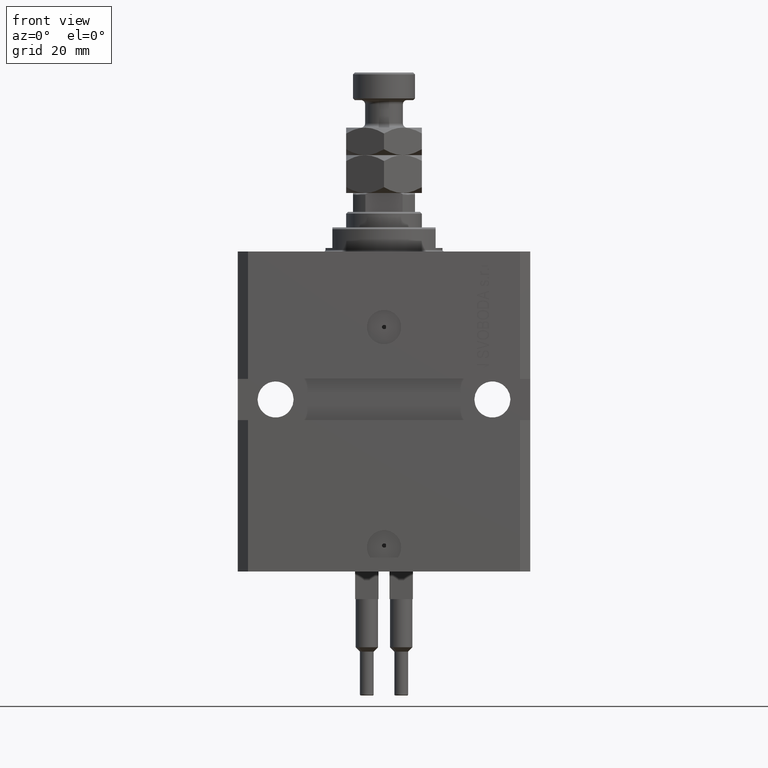
[diagram: clean part render]
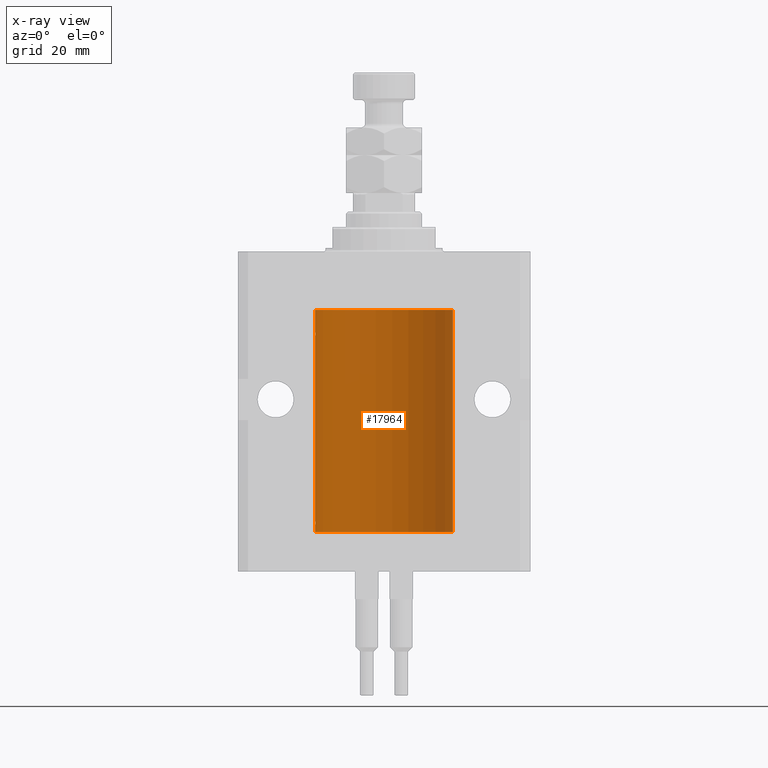
[diagram: x-ray — body ghosted, one internal face saturated and labeled with its STEP entity id]
A machine part, front view, then the same camera in x-ray: the body is ghosted and one INTERNAL B-rep face — a face not visible from any outside direction — is saturated and labeled: STEP entity #17964.
In plain terms, the highlighted cylindrical surface (partial cylindrical patch) has radius 20 mm, axis along (0, 0, 1).
Its self-contained STEP definition (entity closure, byte-faithful):
#838 = EDGE_CURVE ( 'NONE', #1425, #21240, #35783, .T. ) ;
#1259 = CARTESIAN_POINT ( 'NONE',  ( -20.00000000000000000, 2.449293598294706513E-15, -81.59999999999999432 ) ) ;
#1425 = VERTEX_POINT ( 'NONE', #40642 ) ;
#1825 = VERTEX_POINT ( 'NONE', #18519 ) ;
#2938 = ORIENTED_EDGE ( 'NONE', *, *, #26280, .F. ) ;
#3062 = DIRECTION ( 'NONE',  ( 1.000000000000000000, 0.000000000000000000, 0.000000000000000000 ) ) ;
#3287 = CARTESIAN_POINT ( 'NONE',  ( -20.00000000000000000, 2.449293598294706513E-15, -81.59999999999999432 ) ) ;
#3575 = CARTESIAN_POINT ( 'NONE',  ( -20.00000000000000000, 2.449293598294706513E-15, -17.00000000000000000 ) ) ;
#3735 = CARTESIAN_POINT ( 'NONE',  ( -20.00000000000010303, 3.580159278407742946E-13, -24.62500000000332889 ) ) ;
#4054 = DIRECTION ( 'NONE',  ( 0.000000000000000000, 0.000000000000000000, 1.000000000000000000 ) ) ;
#4302 = DIRECTION ( 'NONE',  ( 1.000000000000000000, 0.000000000000000000, 0.000000000000000000 ) ) ;
#5537 = ORIENTED_EDGE ( 'NONE', *, *, #15081, .F. ) ;
#5630 = CIRCLE ( 'NONE', #32206, 20.00000000000000000 ) ;
#5807 = ORIENTED_EDGE ( 'NONE', *, *, #838, .T. ) ;
#8828 = VERTEX_POINT ( 'NONE', #19421 ) ;
#8866 = LINE ( 'NONE', #1259, #15243 ) ;
#9860 = CARTESIAN_POINT ( 'NONE',  ( -20.00000000000000355, 0.1631688615953343080, -79.62499999999984368 ) ) ;
#10688 = LINE ( 'NONE', #33714, #35932 ) ;
#11227 = ORIENTED_EDGE ( 'NONE', *, *, #11367, .T. ) ;
#11367 = EDGE_CURVE ( 'NONE', #1825, #45419, #47713, .T. ) ;
#11404 = ORIENTED_EDGE ( 'NONE', *, *, #38354, .F. ) ;
#11603 = CARTESIAN_POINT ( 'NONE',  ( -20.00000000000010303, 3.580159286679549072E-13, -79.62500000000332534 ) ) ;
#12036 = VERTEX_POINT ( 'NONE', #3575 ) ;
#12445 = EDGE_CURVE ( 'NONE', #1825, #21240, #10688, .T. ) ;
#13049 = CARTESIAN_POINT ( 'NONE',  ( 0.000000000000000000, 0.000000000000000000, -81.59999999999999432 ) ) ;
#13649 = CARTESIAN_POINT ( 'NONE',  ( -19.99023018003212471, 0.6250578794725522025, -79.16284809704971792 ) ) ;
#14204 = CARTESIAN_POINT ( 'NONE',  ( 0.000000000000000000, 0.000000000000000000, -17.00000000000000000 ) ) ;
#15081 = EDGE_CURVE ( 'NONE', #34124, #45419, #26584, .T. ) ;
#15243 = VECTOR ( 'NONE', #31650, 1000.000000000000000 ) ;
#15282 = EDGE_LOOP ( 'NONE', ( #5537, #11404, #43634, #40744, #2938, #5807, #26288, #11227 ) ) ;
#16148 = CARTESIAN_POINT ( 'NONE',  ( -19.99769349528941120, 0.3253804398728645242, -24.55855820727680339 ) ) ;
#16444 = LINE ( 'NONE', #27337, #24251 ) ;
#17435 = CARTESIAN_POINT ( 'NONE',  ( -19.99638934703457238, 0.3843678041337651452, -78.50046362978099523 ) ) ;
#17964 = ADVANCED_FACE ( 'NONE', ( #24947 ), #21140, .F. ) ;
#18519 = CARTESIAN_POINT ( 'NONE',  ( -20.00000000000000000, -1.124177324826063808E-14, -78.37500000000000000 ) ) ;
#19196 = CARTESIAN_POINT ( 'NONE',  ( -19.99253506710754991, 0.5587120480776751608, -24.32511620830248589 ) ) ;
#19421 = CARTESIAN_POINT ( 'NONE',  ( 20.00000000000000000, 0.000000000000000000, -81.59999999999999432 ) ) ;
#19439 = CARTESIAN_POINT ( 'NONE',  ( -19.99766197842594906, 0.3150331617867667688, -23.45402070102505476 ) ) ;
#21140 = CYLINDRICAL_SURFACE ( 'NONE', #32857, 20.00000000000000000 ) ;
#21240 = VERTEX_POINT ( 'NONE', #3735 ) ;
#22046 = DIRECTION ( 'NONE',  ( 0.000000000000000000, 0.000000000000000000, 1.000000000000000000 ) ) ;
#23000 = CARTESIAN_POINT ( 'NONE',  ( -20.00000000000000000, -2.867584836844214272E-15, -23.37500000000000000 ) ) ;
#23253 = CARTESIAN_POINT ( 'NONE',  ( -19.99023380173166231, 0.6249420416828462832, -23.83670793056396064 ) ) ;
#23498 = CARTESIAN_POINT ( 'NONE',  ( -19.99256581701871482, 0.5573276956902001311, -23.67348565770948809 ) ) ;
#23752 = CARTESIAN_POINT ( 'NONE',  ( -19.99999999999999645, 0.08259581631026780002, -23.37500000000000000 ) ) ;
#24251 = VECTOR ( 'NONE', #47574, 1000.000000000000000 ) ;
#24947 = FACE_OUTER_BOUND ( 'NONE', #15282, .T. ) ;
#25303 = CARTESIAN_POINT ( 'NONE',  ( -19.99023380173166231, 0.6249420416828449509, -78.83670793056396064 ) ) ;
#26030 = EDGE_CURVE ( 'NONE', #36516, #12036, #5630, .T. ) ;
#26280 = EDGE_CURVE ( 'NONE', #1425, #12036, #8866, .T. ) ;
#26288 = ORIENTED_EDGE ( 'NONE', *, *, #12445, .F. ) ;
#26584 = LINE ( 'NONE', #3287, #32107 ) ;
#27297 = CARTESIAN_POINT ( 'NONE',  ( -20.00000000000000000, 0.1631688615953320320, -24.62499999999985434 ) ) ;
#27336 = CARTESIAN_POINT ( 'NONE',  ( 0.000000000000000000, 0.000000000000000000, -81.59999999999999432 ) ) ;
#27337 = CARTESIAN_POINT ( 'NONE',  ( 20.00000000000000000, 0.000000000000000000, -81.59999999999999432 ) ) ;
#28281 = EDGE_CURVE ( 'NONE', #8828, #36516, #16444, .T. ) ;
#29089 = CARTESIAN_POINT ( 'NONE',  ( -19.99253506710754991, 0.5587120480776742726, -79.32511620830248944 ) ) ;
#29584 = CARTESIAN_POINT ( 'NONE',  ( -19.99947377218718003, 0.1636439183262797525, -78.39126364004653169 ) ) ;
#31107 = CARTESIAN_POINT ( 'NONE',  ( -19.99023018003212471, 0.6250578794725500931, -24.16284809704970371 ) ) ;
#31472 = CARTESIAN_POINT ( 'NONE',  ( -20.00000000000010303, 3.580159286679549072E-13, -79.62500000000332534 ) ) ;
#31650 = DIRECTION ( 'NONE',  ( -0.000000000000000000, -0.000000000000000000, 1.000000000000000000 ) ) ;
#32107 = VECTOR ( 'NONE', #39424, 1000.000000000000000 ) ;
#32206 = AXIS2_PLACEMENT_3D ( 'NONE', #14204, #22046, #3062 ) ;
#32857 = AXIS2_PLACEMENT_3D ( 'NONE', #13049, #36590, #44437 ) ;
#33380 = CARTESIAN_POINT ( 'NONE',  ( -19.99999999999999289, 0.08259581631026131909, -78.37499999999998579 ) ) ;
#33714 = CARTESIAN_POINT ( 'NONE',  ( -20.00000000000000000, 2.449293598294706513E-15, -81.59999999999999432 ) ) ;
#34124 = VERTEX_POINT ( 'NONE', #43355 ) ;
#35783 = B_SPLINE_CURVE_WITH_KNOTS ( 'NONE', 3,
 ( #23000, #23752, #46530, #19439, #47032, #23498, #23253, #31107, #19196, #16148, #27297, #42501 ),
 .UNSPECIFIED., .F., .F.,
 ( 4, 2, 2, 2, 2, 4 ),
 ( 5.848927291235706941E-19, 0.0002442693137305304075, 0.0004885386274610601645, 0.0009770772549221123059, 0.001465615882383164339, 0.001954154509844215938 ),
 .UNSPECIFIED. ) ;
#35932 = VECTOR ( 'NONE', #37773, 1000.000000000000000 ) ;
#36516 = VERTEX_POINT ( 'NONE', #43472 ) ;
#36590 = DIRECTION ( 'NONE',  ( -0.000000000000000000, -0.000000000000000000, 1.000000000000000000 ) ) ;
#37773 = DIRECTION ( 'NONE',  ( -0.000000000000000000, -0.000000000000000000, 1.000000000000000000 ) ) ;
#38354 = EDGE_CURVE ( 'NONE', #8828, #34124, #47903, .T. ) ;
#39424 = DIRECTION ( 'NONE',  ( -0.000000000000000000, -0.000000000000000000, 1.000000000000000000 ) ) ;
#40642 = CARTESIAN_POINT ( 'NONE',  ( -20.00000000000000000, -2.867584836844214272E-15, -23.37500000000000000 ) ) ;
#40744 = ORIENTED_EDGE ( 'NONE', *, *, #26030, .T. ) ;
#41484 = CARTESIAN_POINT ( 'NONE',  ( -19.99766197842594551, 0.3150331617867603295, -78.45402070102504410 ) ) ;
#42501 = CARTESIAN_POINT ( 'NONE',  ( -20.00000000000010303, 3.580159278407742946E-13, -24.62500000000332889 ) ) ;
#43355 = CARTESIAN_POINT ( 'NONE',  ( -20.00000000000000000, 2.449293598294706513E-15, -81.59999999999999432 ) ) ;
#43472 = CARTESIAN_POINT ( 'NONE',  ( 20.00000000000000000, 0.000000000000000000, -17.00000000000000000 ) ) ;
#43634 = ORIENTED_EDGE ( 'NONE', *, *, #28281, .T. ) ;
#44437 = DIRECTION ( 'NONE',  ( 1.000000000000000000, 0.000000000000000000, 0.000000000000000000 ) ) ;
#44540 = CARTESIAN_POINT ( 'NONE',  ( -19.99769349528941831, 0.3253804398728615266, -79.55855820727680339 ) ) ;
#45032 = CARTESIAN_POINT ( 'NONE',  ( -20.00000000000000000, -1.124177324826063808E-14, -78.37500000000000000 ) ) ;
#45419 = VERTEX_POINT ( 'NONE', #31472 ) ;
#46530 = CARTESIAN_POINT ( 'NONE',  ( -19.99947377218718714, 0.1636439183262877461, -23.39126364004656011 ) ) ;
#47032 = CARTESIAN_POINT ( 'NONE',  ( -19.99638934703457593, 0.3843678041337688644, -23.50046362978100944 ) ) ;
#47574 = DIRECTION ( 'NONE',  ( -0.000000000000000000, -0.000000000000000000, 1.000000000000000000 ) ) ;
#47713 = B_SPLINE_CURVE_WITH_KNOTS ( 'NONE', 3,
 ( #45032, #33380, #29584, #41484, #17435, #48327, #25303, #13649, #29089, #44540, #9860, #11603 ),
 .UNSPECIFIED., .F., .F.,
 ( 4, 2, 2, 2, 2, 4 ),
 ( 1.522880481566060999E-18, 0.0002442693137305179392, 0.0004885386274610343605, 0.0009770772549220966934, 0.001465615882383158918, 0.001954154509844221576 ),
 .UNSPECIFIED. ) ;
#47903 = CIRCLE ( 'NONE', #49529, 20.00000000000000000 ) ;
#48327 = CARTESIAN_POINT ( 'NONE',  ( -19.99256581701871838, 0.5573276956901996870, -78.67348565770949165 ) ) ;
#49529 = AXIS2_PLACEMENT_3D ( 'NONE', #27336, #4054, #4302 ) ;